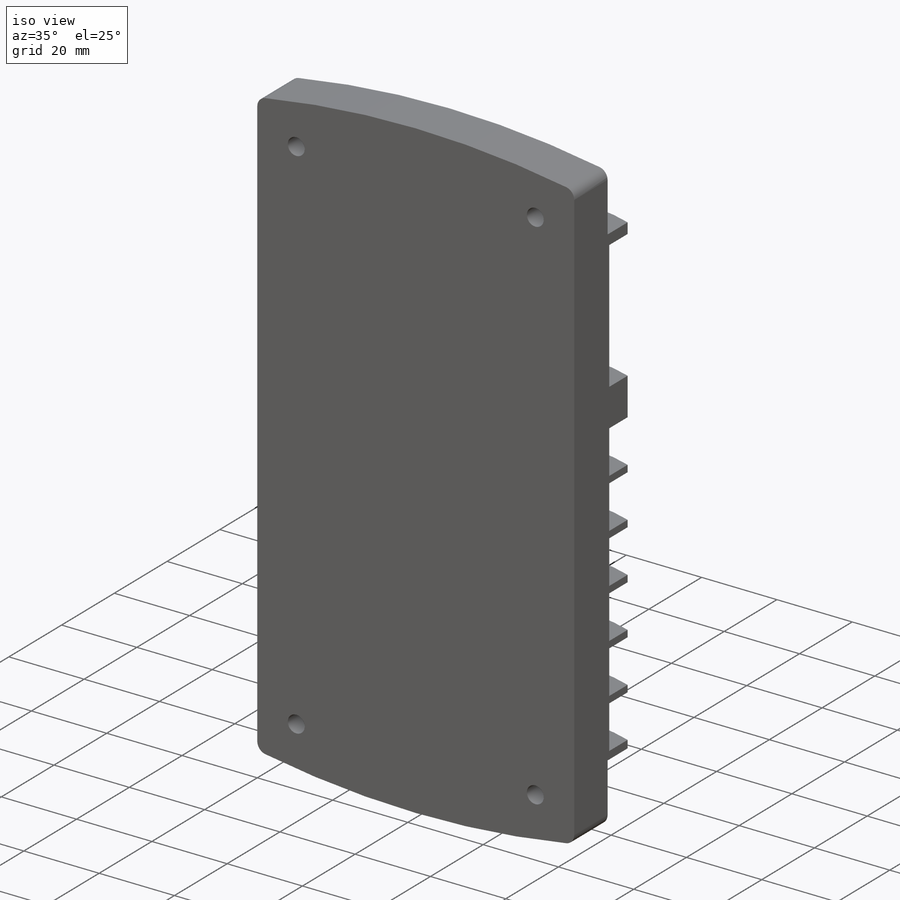
[diagram: iso view]
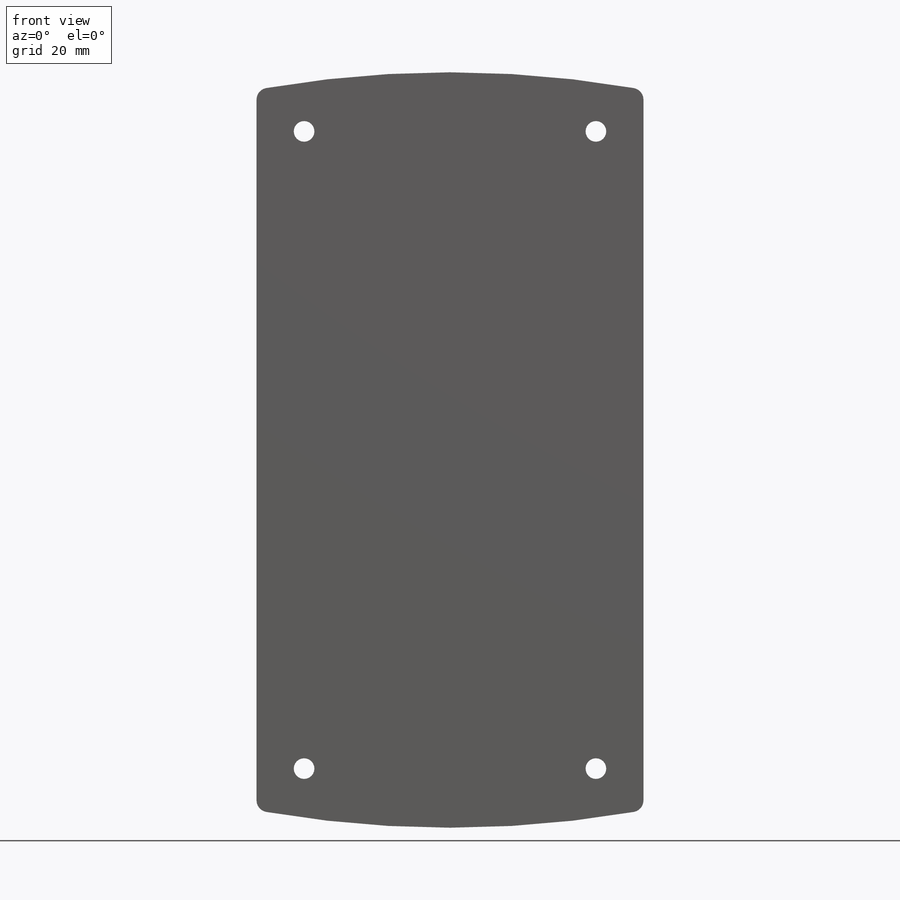
[diagram: front view]
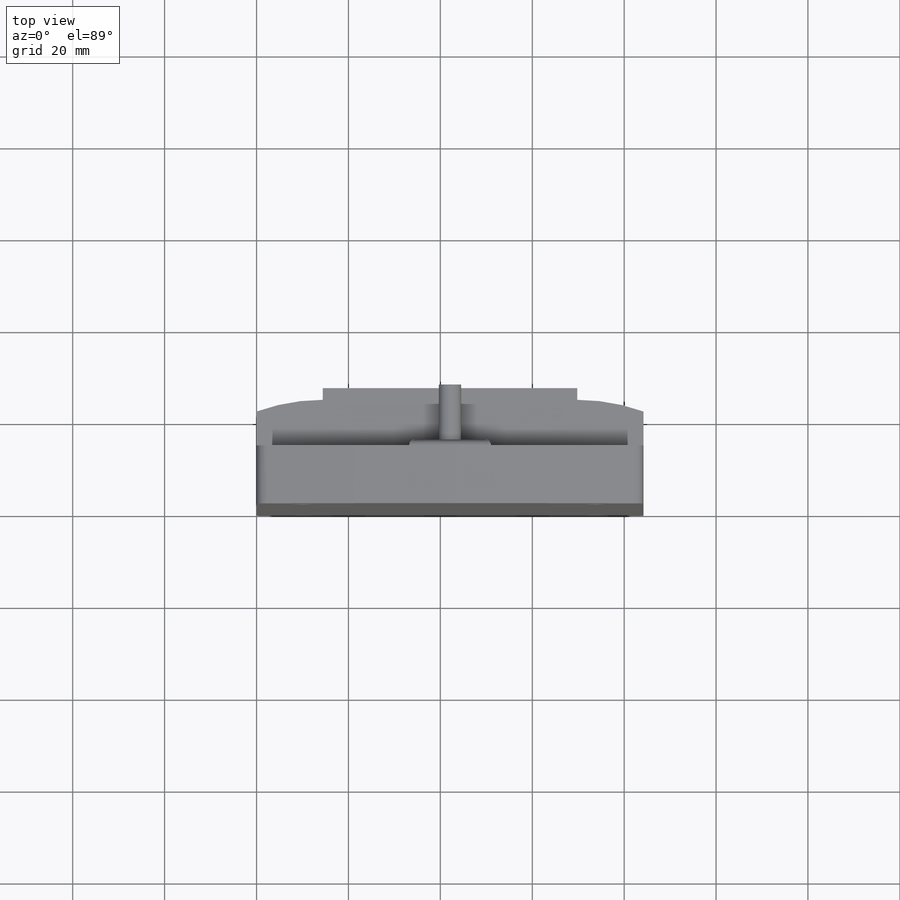
[diagram: top view]
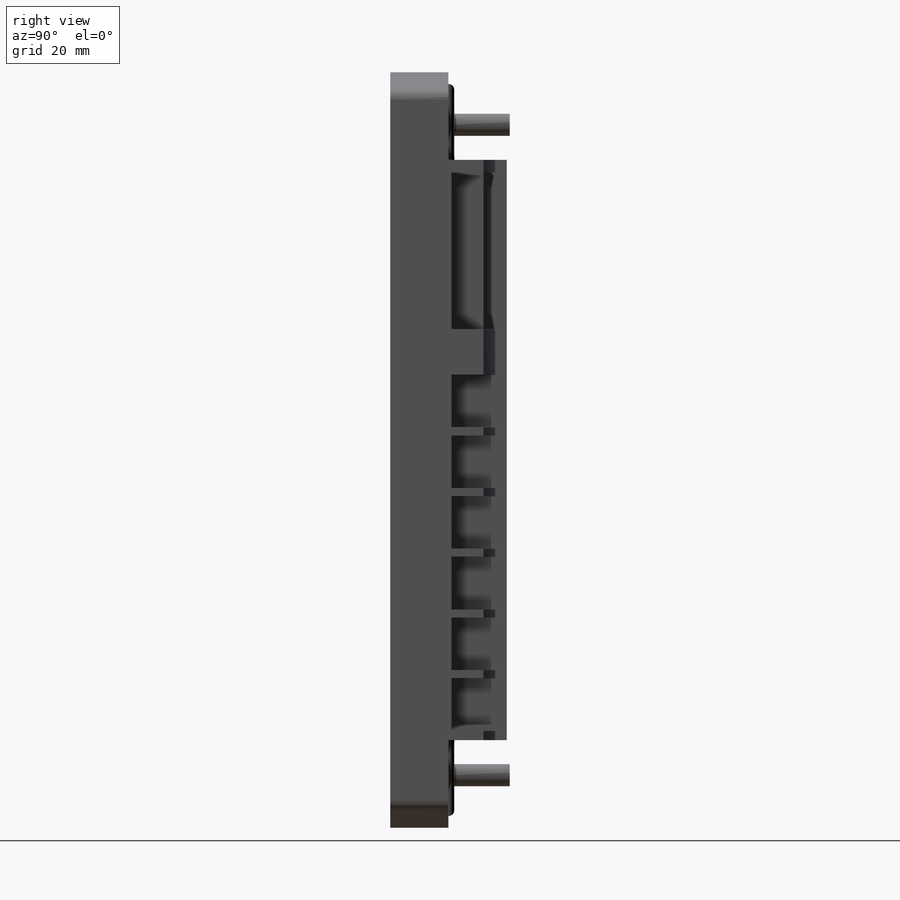
[diagram: right view]
SOLIDWORKS PART (.sldprt)
format: sldprt  version: not decoded by parser v0  size: 661,504 bytes
history: native  units: mm
features: sketch x14, cut_extrude x9, mirror x6, extrude x3, plane x2, fillet x2, material x1, hole x1 (+12 scaffold rows collapsed)
feature tree (50):
  scaffold x12  (default folders/planes/origin — collapsed)
  material  "Material <not specified>"
  sketch  "Sketch1"  dims[D1=38.5572mm D2=84.201mm]
  extrude  "Boss-Extrude2"  Depth=164.3888mm
  plane  "Plane1"
  sketch  "Sketch3"  dims[D1=3.81mm D2=3.81mm]
  cut_extrude  "Cut-Extrude2"  [1 undecoded]
  sketch  "Sketch4"  dims[D1=19.05mm D2=19.05mm]
  cut_extrude  "Cut-Extrude6"  Depth=25.908mm
  sketch  "Sketch6"
  cut_extrude  "Cut-Extrude7"  Depth=13.208mm
  plane  "Plane2"
  hole  "CBORE for #8 Binding Head Machine Screw1"  Diameter=4.4958mm Depth=12.6492mm
  sketch  "Sketch8"  dims[D1=63.5mm D2=138.6586mm]
  sketch  "Sketch9"  dims[hole-wizard template sketch: 41 standard entries collapsed; hole parameters kept: c12.Thru Hole Dia.=4.4958mm c12.Thru Hole Depth=12.6492mm c12.C'Bore Dia.=9.525mm c12.C'Bore Depth=2.667mm]
  fillet  "Fillet1"  Radius=2.54mm
  sketch  "Sketch12"  dims[D1=7.62mm D2=2.54mm D3=2.54mm D4=7.62mm D5=55.372mm]
  cut_extrude  "Cut-Extrude8"  [1 undecoded]
  sketch  "Sketch14"  dims[D1=11.43mm D2=6.985mm D3=2.032mm D4=5.08mm D6=1.778mm D5=6.0]
  cut_extrude  "Cut-Extrude10"  [1 undecoded]
  mirror  "Mirror4"
  sketch  "Sketch15"  dims[D1=12.7mm D2=5.08mm D3=5.715mm D5=13.208mm D4=6.0]
  cut_extrude  "Cut-Extrude11"  Depth=2.54mm
  mirror  "Mirror5"
  sketch  "Sketch16"  dims[D1=34.036mm D2=2.794mm D3=14.605mm]
  cut_extrude  "Cut-Extrude12"  Depth=5.08mm
  mirror  "Mirror6"
  sketch  "Sketch17"
  cut_extrude  "Cut-Extrude13"  [1 undecoded]
  mirror  "Mirror7"
  sketch  "Sketch18"  dims[D1=17.78mm D2=2.54mm]
  extrude  "Boss-Extrude3"  Depth=1.27mm
  fillet  "Fillet2"  Radius=1.27mm
  sketch  "Sketch19"  dims[D1=4.826mm]
  extrude  "Boss-Extrude5"  Depth=12.065mm
  mirror  "Mirror11"
  sketch  "Sketch20"  dims[c1.D1=~0.77756mm c1.D2=0.254mm c2.D1=5.207mm c2.D3=18.415mm c2.D4=6.0]
  cut_extrude  "Cut-Extrude14"  Depth=11.684mm
  mirror  "Mirror12"
decode coverage: 23 of 35 modeling features carry decoded parameters
note: ~ marks probable driven/reference dimensions
note: 4 parameter values undecoded
summary: no parameter record found for 4 features
note: suppression state not decoded; provenance and decode notes live in map.json
